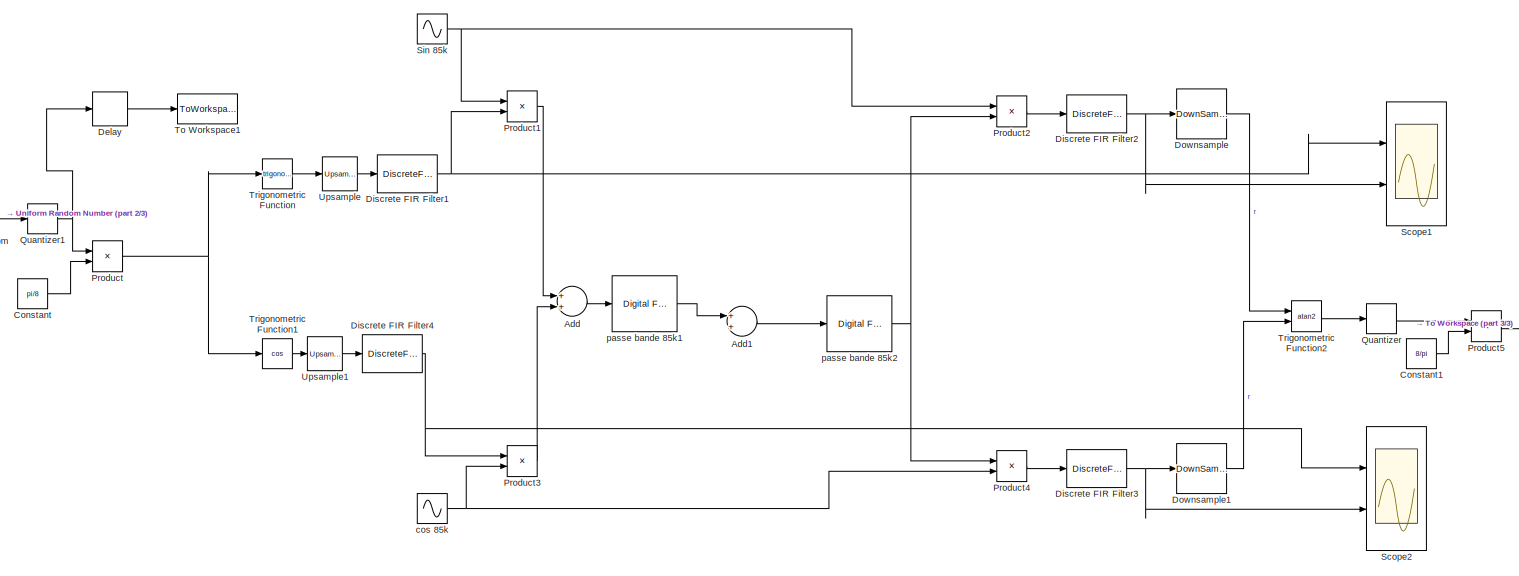
[diagram: root canvas - part 1/3, most of the canvas]
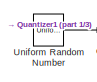
[diagram: root canvas - part 2/3, middle left region]
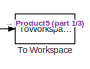
[diagram: root canvas - part 3/3, middle right region]
MODEL slx_785a7c545a1c
KIND model
CONFIG AbsTol = auto
CONFIG FixedStep = 1/2000000
CONFIG MaxStep = auto
CONFIG MinStep = auto
CONFIG RelTol = 1e-3
CONFIG SampleTimeConstraint = Unconstrained
CONFIG Solver = FixedStepDiscrete
CONFIG SolverMode = Auto
CONFIG SolverName = FixedStepDiscrete
CONFIG StartTime = 0.0
CONFIG StopTime = 0.05
BLOCK [Sum] Add
  InputSameDT = off
  OutDataTypeStr = Inherit: Inherit via internal rule
  Ports = [2, 1]
  SaturateOnIntegerOverflow = off
BLOCK [Sum] Add1
  InputSameDT = off
  OutDataTypeStr = Inherit: Inherit via internal rule
  Ports = [2, 1]
  SaturateOnIntegerOverflow = off
BLOCK [Constant] Constant
  SampleTime = 1/1000
  Value = pi/8
BLOCK [Constant] Constant1
  SampleTime = 1/1000
  Value = 8/pi
BLOCK [Delay] Delay
  DelayLength = 3
  InitialCondition = 0
  InputPortMap = u0
  Ports = [1, 1]
BLOCK [DiscreteFir] Discrete FIR Filter1
  Coefficients = sin([0:1999]/1999*pi)
  InputPortMap = u0
  OutputPortMap = o0
  Ports = [1, 1]
BLOCK [DiscreteFir] Discrete FIR Filter2
  Coefficients = sin([0:1999]/1999*pi)
  InputPortMap = u0
  OutputPortMap = o0
  Ports = [1, 1]
BLOCK [DiscreteFir] Discrete FIR Filter3
  Coefficients = sin([0:1999]/1999*pi)
  InputPortMap = u0
  OutputPortMap = o0
  Ports = [1, 1]
BLOCK [DiscreteFir] Discrete FIR Filter4
  Coefficients = sin([0:1999]/1999*pi)
  InputPortMap = u0
  OutputPortMap = o0
  Ports = [1, 1]
BLOCK [DownSample] Downsample
  N = 2000
  RateOptions = Allow multirate processing
BLOCK [DownSample] Downsample1
  N = 2000
  RateOptions = Allow multirate processing
BLOCK [Product] Product
  InputSameDT = off
  OutDataTypeStr = Inherit: Inherit via internal rule
  Ports = [2, 1]
  RndMeth = Floor
  SaturateOnIntegerOverflow = off
BLOCK [Product] Product1
  InputSameDT = off
  OutDataTypeStr = Inherit: Inherit via internal rule
  Ports = [2, 1]
  RndMeth = Floor
  SaturateOnIntegerOverflow = off
BLOCK [Product] Product2
  InputSameDT = off
  OutDataTypeStr = Inherit: Inherit via internal rule
  Ports = [2, 1]
  RndMeth = Floor
  SaturateOnIntegerOverflow = off
BLOCK [Product] Product3
  InputSameDT = off
  OutDataTypeStr = Inherit: Inherit via internal rule
  Ports = [2, 1]
  RndMeth = Floor
  SaturateOnIntegerOverflow = off
BLOCK [Product] Product4
  InputSameDT = off
  OutDataTypeStr = Inherit: Inherit via internal rule
  Ports = [2, 1]
  RndMeth = Floor
  SaturateOnIntegerOverflow = off
BLOCK [Product] Product5
  InputSameDT = off
  OutDataTypeStr = Inherit: Inherit via internal rule
  Ports = [2, 1]
  RndMeth = Floor
  SaturateOnIntegerOverflow = off
BLOCK [Quantizer] Quantizer
  QuantizationInterval = pi/8
BLOCK [Quantizer] Quantizer1
  QuantizationInterval = 1
BLOCK [Scope] Scope1
  NumInputPorts = 2
  Ports = [2]
  ScopeSpecificationString = Simulink.scopes.TimeScopeBlockCfg('CurrentConfiguration', extmgr.ConfigurationSet(extmgr.Configuration('Core','General UI',true),extmgr.Configuration('Core','Source UI',true),extmgr.Configuration('Sources','WiredSimulink',true,'DataLoggingVariableName','ScopeData1'),extmgr.Configuration('Visuals','Time Domain',true,'SerializedDisplays',{struct('MinYLimReal','-1.25','MaxYLimReal','1.25','YLabelReal...<+2060ch>
BLOCK [Scope] Scope2
  NumInputPorts = 2
  Ports = [2]
  ScopeSpecificationString = Simulink.scopes.TimeScopeBlockCfg('CurrentConfiguration', extmgr.ConfigurationSet(extmgr.Configuration('Core','General UI',true),extmgr.Configuration('Core','Source UI',true),extmgr.Configuration('Sources','WiredSimulink',true,'DataLoggingVariableName','ScopeData2'),extmgr.Configuration('Visuals','Time Domain',true,'SerializedDisplays',{struct('MinYLimReal','-1.25','MaxYLimReal','1.25','YLabelReal...<+2059ch>
BLOCK [Sin] Sin 85k
  Frequency = 85000*2*pi
  Ports = [0, 1]
  SampleTime = 1/2000000
BLOCK [ToWorkspace] To Workspace
  FixptAsFi = on
  MaxDataPoints = inf
  Ports = [1]
  SampleTime = -1
  Save2DSignal = 2-D array (concatenate along first dimension)
  VariableName = simout
BLOCK [ToWorkspace] To Workspace1
  FixptAsFi = on
  MaxDataPoints = inf
  Ports = [1]
  SampleTime = -1
  Save2DSignal = 2-D array (concatenate along first dimension)
  VariableName = simout1
BLOCK [Trigonometry] Trigonometric Function
  Ports = [1, 1]
BLOCK [Trigonometry] Trigonometric Function1
  Operator = cos
  Ports = [1, 1]
BLOCK [Trigonometry] Trigonometric Function2
  ApproximationMethod = CORDIC
  Operator = atan2
  Ports = [2, 1]
BLOCK [UniformRandomNumber] Uniform Random Number
  Maximum = 15
  Minimum = 0
  SampleTime = 1/1000
BLOCK [Reference] Upsample  REF=dspsigops/Upsample
  Ports = [1, 1]
  SourceBlock = dspsigops/Upsample
  SourceType = Upsample
  UserDataPersistent = on
BLOCK [Reference] Upsample1  REF=dspsigops/Upsample
  Ports = [1, 1]
  SourceBlock = dspsigops/Upsample
  SourceType = Upsample
  UserDataPersistent = on
BLOCK [Sin] cos 85k
  Frequency = 85000*2*pi
  Phase = pi/2
  Ports = [0, 1]
  SampleTime = 1/2000000
BLOCK [Reference] passe bande 85k1  REF=dsparch4/Digital
Filter Design
  Ports = [1, 1]
  SourceBlock = dsparch4/Digital\nFilter Design
  SourceType = Digital Filter Design
  UserDataPersistent = on
BLOCK [Reference] passe bande 85k2  REF=dsparch4/Digital
Filter Design
  Ports = [1, 1]
  SourceBlock = dsparch4/Digital\nFilter Design
  SourceType = Digital Filter Design
  UserDataPersistent = on
LINE Add1:1 -> passe bande 85k2:1
LINE Add:1 -> passe bande 85k1:1
LINE Constant1:1 -> Product5:2
LINE Constant:1 -> Product:2
LINE Delay:1 -> To Workspace1:1
NET Discrete FIR Filter1:1 -> Product1:2, Scope1:1
NET Discrete FIR Filter2:1 -> Downsample:1, Scope1:2
NET Discrete FIR Filter3:1 -> Downsample1:1, Scope2:2
NET Discrete FIR Filter4:1 -> Product3:1, Scope2:1
LINE Downsample1:1 -> Trigonometric Function2:2
LINE Downsample:1 -> Trigonometric Function2:1
LINE Product1:1 -> Add:1
LINE Product2:1 -> Discrete FIR Filter2:1
LINE Product3:1 -> Add:2
LINE Product4:1 -> Discrete FIR Filter3:1
LINE Product5:1 -> To Workspace:1
NET Product:1 -> Trigonometric Function1:1, Trigonometric Function:1
NET Quantizer1:1 -> Delay:1, Product:1
LINE Quantizer:1 -> Product5:1
NET Sin 85k:1 -> Product1:1, Product2:1
LINE Trigonometric Function1:1 -> Upsample1:1
LINE Trigonometric Function2:1 -> Quantizer:1
LINE Trigonometric Function:1 -> Upsample:1
LINE Uniform Random Number:1 -> Quantizer1:1
LINE Upsample1:1 -> Discrete FIR Filter4:1
LINE Upsample:1 -> Discrete FIR Filter1:1
NET cos 85k:1 -> Product3:2, Product4:2
LINE passe bande 85k1:1 -> Add1:1
NET passe bande 85k2:1 -> Product2:2, Product4:1
note: NET lines group one-source signal fan-out (src -> all destinations, sorted); 1:1 wires keep LINE
